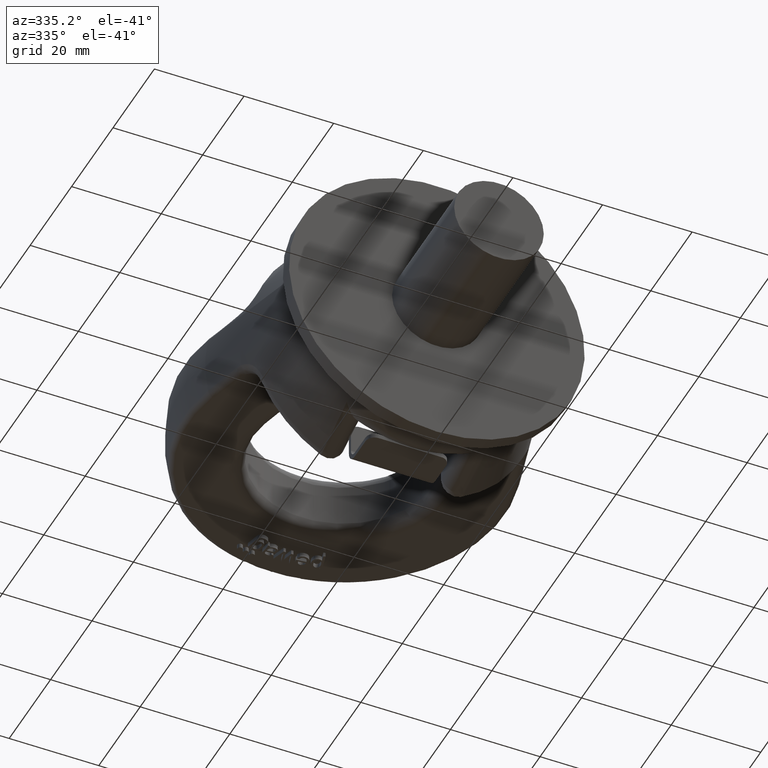
[diagram: clean part render]
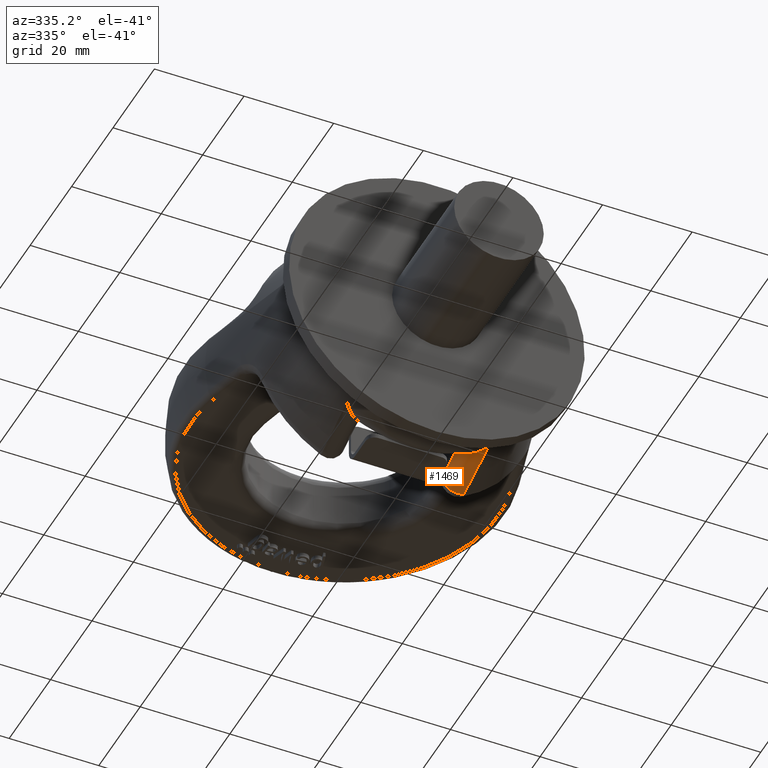
[diagram: same view with one face highlighted and labeled with its STEP entity id]
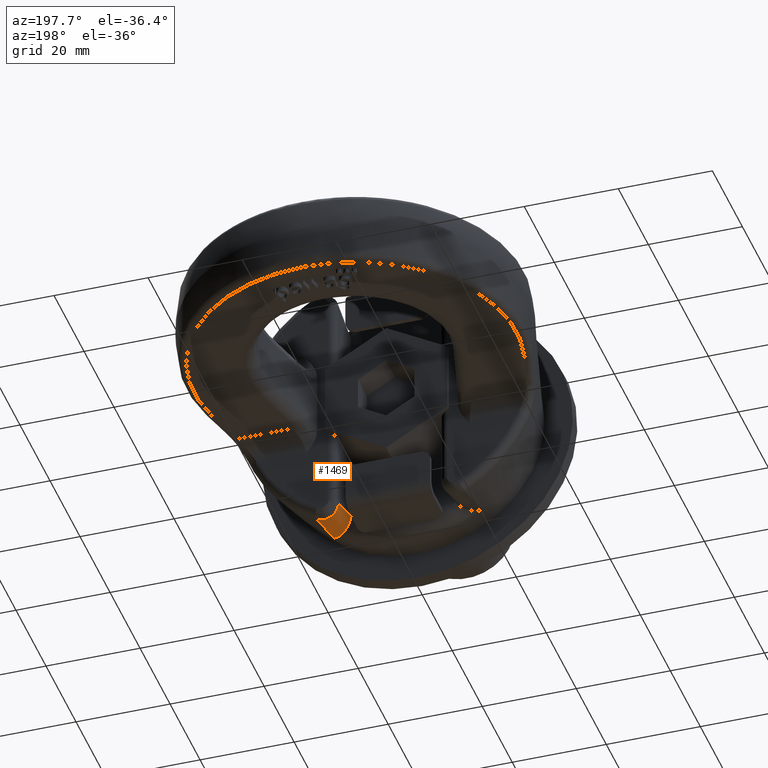
[diagram: same view with one face highlighted and labeled with its STEP entity id]
A machine part, auxiliary view. The second image highlights one B-rep face of the part: STEP entity #1469.
A second angle (auxiliary view) of the same face is appended — the face is thin or edge-on in the first view.
In plain terms, the highlighted face is a freeform B-spline surface patch.
Its self-contained STEP definition (entity closure, byte-faithful):
#1071=(
BOUNDED_SURFACE()
B_SPLINE_SURFACE(3,2,((#8524,#8525,#8526),(#8527,#8528,#8529),(#8530,#8531,
#8532),(#8533,#8534,#8535)),.UNSPECIFIED.,.F.,.F.,.F.)
B_SPLINE_SURFACE_WITH_KNOTS((4,4),(3,3),(0.,1.),(0.,1.),.UNSPECIFIED.)
GEOMETRIC_REPRESENTATION_ITEM()
RATIONAL_B_SPLINE_SURFACE(((1.,0.509282077243217,1.),(1.,0.500594671319155,
1.),(1.,0.490777416375322,1.),(1.,0.479185485437555,1.)))
REPRESENTATION_ITEM('')
SURFACE()
);
#1236=FACE_OUTER_BOUND('',#2006,.T.);
#1469=ADVANCED_FACE('',(#1236),#1071,.T.);
#2006=EDGE_LOOP('',(#3413,#3414,#3415,#3416,#3417));
#3413=ORIENTED_EDGE('',*,*,#4672,.F.);
#3414=ORIENTED_EDGE('',*,*,#4689,.T.);
#3415=ORIENTED_EDGE('',*,*,#4424,.F.);
#3416=ORIENTED_EDGE('',*,*,#4690,.F.);
#3417=ORIENTED_EDGE('',*,*,#4674,.F.);
#4033=VERTEX_POINT('',#6829);
#4034=VERTEX_POINT('',#6837);
#4188=VERTEX_POINT('',#8406);
#4189=VERTEX_POINT('',#8414);
#4190=VERTEX_POINT('',#8421);
#4424=EDGE_CURVE('',#4033,#4034,#4937,.T.);
#4672=EDGE_CURVE('',#4188,#4189,#5063,.T.);
#4674=EDGE_CURVE('',#4189,#4190,#5064,.T.);
#4689=EDGE_CURVE('',#4188,#4034,#5069,.T.);
#4690=EDGE_CURVE('',#4190,#4033,#5070,.T.);
#4937=B_SPLINE_CURVE_WITH_KNOTS('',3,(#6830,#6831,#6832,#6833,#6834,#6835,
#6836),.UNSPECIFIED.,.F.,.F.,(4,3,4),(0.,0.746692437274741,1.),
 .UNSPECIFIED.);
#5063=B_SPLINE_CURVE_WITH_KNOTS('',3,(#8407,#8408,#8409,#8410,#8411,#8412,
#8413),.UNSPECIFIED.,.F.,.F.,(4,3,4),(0.,0.314704734168954,1.),
 .UNSPECIFIED.);
#5064=B_SPLINE_CURVE_WITH_KNOTS('',3,(#8417,#8418,#8419,#8420),
 .UNSPECIFIED.,.F.,.F.,(4,4),(0.,1.),.UNSPECIFIED.);
#5069=B_SPLINE_CURVE_WITH_KNOTS('',3,(#8494,#8495,#8496,#8497,#8498,#8499,
#8500,#8501,#8502,#8503,#8504,#8505,#8506,#8507,#8508,#8509,#8510,#8511,
#8512,#8513,#8514,#8515),.UNSPECIFIED.,.F.,.F.,(4,3,3,3,3,3,3,4),(0.,0.0530849997396826,
0.217382230700914,0.376354486562543,0.531751607381942,0.686687843368128,
0.843687573052223,1.),.UNSPECIFIED.);
#5070=B_SPLINE_CURVE_WITH_KNOTS('',3,(#8516,#8517,#8518,#8519,#8520,#8521,
#8522,#8523),.UNSPECIFIED.,.F.,.F.,(4,2,2,4),(0.,0.25,0.5,1.),
 .UNSPECIFIED.);
#6829=CARTESIAN_POINT('',(15.9291755573175,9.00163423418238,-23.6885869205043));
#6830=CARTESIAN_POINT('',(15.9291755573175,9.00163423418238,-23.6885869205043));
#6831=CARTESIAN_POINT('',(15.8770326783706,11.9801002864094,-24.6483685762119));
#6832=CARTESIAN_POINT('',(15.8294539662451,14.9657001945547,-25.5863889859365));
#6833=CARTESIAN_POINT('',(15.7854457155971,17.9559479728204,-26.5092330839176));
#6834=CARTESIAN_POINT('',(15.770516164402,18.970372691692,-26.822302747061));
#6835=CARTESIAN_POINT('',(15.7559999337423,19.9853514773661,-27.1336014044787));
#6836=CARTESIAN_POINT('',(15.741865372925,21.0008171170914,-27.4433154087881));
#6837=CARTESIAN_POINT('',(15.741865372925,21.0008171170914,-27.4433154087881));
#8406=CARTESIAN_POINT('',(11.0000000000001,21.4,-24.6366973963621));
#8407=CARTESIAN_POINT('',(11.0000000000001,21.4,-24.6366973963621));
#8408=CARTESIAN_POINT('',(11.0000000000001,20.5178093179416,-24.3743625995523));
#8409=CARTESIAN_POINT('',(11.0000000000001,19.6359031565021,-24.1110687007188));
#8410=CARTESIAN_POINT('',(11.0000000000001,18.754313738638,-23.84672036341));
#8411=CARTESIAN_POINT('',(11.0000000000001,16.8345855572754,-23.2710817015286));
#8412=CARTESIAN_POINT('',(11.0000000000001,14.916339126825,-22.690465344758));
#8413=CARTESIAN_POINT('',(11.0000000000001,13.,-22.1036429607526));
#8414=CARTESIAN_POINT('',(11.0000000000001,13.,-22.1036429607526));
#8417=CARTESIAN_POINT('',(11.0000000000001,13.,-22.1036429607526));
#8418=CARTESIAN_POINT('',(11.0000000000001,13.,-22.3717313278361));
#8419=CARTESIAN_POINT('',(11.0311752682811,13.,-22.6415939864479));
#8420=CARTESIAN_POINT('',(11.092526005394,13.,-22.9025680457358));
#8421=CARTESIAN_POINT('',(11.092526005394,13.,-22.9025680457358));
#8494=CARTESIAN_POINT('',(11.0000000000001,21.4,-24.6366973963621));
#8495=CARTESIAN_POINT('',(11.0000000000001,21.3832603576892,-24.7542607923367));
#8496=CARTESIAN_POINT('',(11.0064858305428,21.3664982668186,-24.8719985853573));
#8497=CARTESIAN_POINT('',(11.0194024273902,21.3498625489566,-24.9888650994445));
#8498=CARTESIAN_POINT('',(11.0588780857036,21.299020525947,-25.3460321329057));
#8499=CARTESIAN_POINT('',(11.1606220292053,21.2484556391142,-25.7014132706364));
#8500=CARTESIAN_POINT('',(11.3166303574352,21.2023142190879,-26.0258264324769));
#8501=CARTESIAN_POINT('',(11.4676948501069,21.1576350004429,-26.3399590833776));
#8502=CARTESIAN_POINT('',(11.6735652208657,21.1159269471963,-26.6333236271739));
#8503=CARTESIAN_POINT('',(11.9186202164524,21.0804823060893,-26.8826983701644));
#8504=CARTESIAN_POINT('',(12.1582631916909,21.0458204570999,-27.1265656915241));
#8505=CARTESIAN_POINT('',(12.4414706597576,21.0162669259865,-27.3345637182537));
#8506=CARTESIAN_POINT('',(12.7469631074558,20.9941275326738,-27.4904023573867));
#8507=CARTESIAN_POINT('',(13.0515283391289,20.9720553357857,-27.6457680025566));
#8508=CARTESIAN_POINT('',(13.3860141383771,20.9567958408598,-27.753205263306));
#8509=CARTESIAN_POINT('',(13.7247478458791,20.9495636524575,-27.804124972374));
#8510=CARTESIAN_POINT('',(14.0678532259127,20.942238125959,-27.8557018474947));
#8511=CARTESIAN_POINT('',(14.4242985987282,20.9429651616288,-27.850582373168));
#8512=CARTESIAN_POINT('',(14.7657515481371,20.9516848578117,-27.7891902773241));
#8513=CARTESIAN_POINT('',(15.1057721549929,20.9603679762117,-27.7280557118705));
#8514=CARTESIAN_POINT('',(15.4398186660766,20.9771987149374,-27.6095586122227));
#8515=CARTESIAN_POINT('',(15.741865372923,21.0008171170915,-27.4433154087893));
#8516=CARTESIAN_POINT('',(11.092526005394,13.,-22.9025680457358));
#8517=CARTESIAN_POINT('',(11.2365061086135,13.,-23.5150312982113));
#8518=CARTESIAN_POINT('',(11.5780739435398,12.8010781302692,-24.0576663479175));
#8519=CARTESIAN_POINT('',(12.4355039909571,12.1793401429735,-24.7113728297931));
#8520=CARTESIAN_POINT('',(12.9305452249651,11.7787213747801,-24.8436594537012));
#8521=CARTESIAN_POINT('',(14.345204921113,10.5757088949326,-24.8552266937649));
#8522=CARTESIAN_POINT('',(15.2289696717493,9.74703359851161,-24.3908567341523));
#8523=CARTESIAN_POINT('',(15.9291755573175,9.00163423418237,-23.6885869205043));
#8524=CARTESIAN_POINT('',(15.7400433011126,21.1318746314276,-27.4832779396564));
#8525=CARTESIAN_POINT('',(11.0000000000001,20.391181907148,-29.9780548263654));
#8526=CARTESIAN_POINT('',(11.0000000000001,21.9302403972452,-24.7942486102015));
#8527=CARTESIAN_POINT('',(15.79663152499,17.0567957124502,-26.2409888428327));
#8528=CARTESIAN_POINT('',(11.0000000000113,16.191906229539,-28.8633745362063));
#8529=CARTESIAN_POINT('',(11.0000000000001,17.855172009444,-23.5843714778153));
#8530=CARTESIAN_POINT('',(15.8592945877935,12.9874373463074,-24.9735060559783));
#8531=CARTESIAN_POINT('',(11.0000000000073,12.0335765672558,-27.7600348856653));
#8532=CARTESIAN_POINT('',(11.0000000000001,13.7858246263468,-22.3549809146442));
#8533=CARTESIAN_POINT('',(15.9304401314943,8.92945297283104,-23.6653224329016));
#8534=CARTESIAN_POINT('',(11.0000000000001,7.98935914583597,-26.6923092156491));
#8535=CARTESIAN_POINT('',(11.,9.72781873864866,-21.0946826185199));